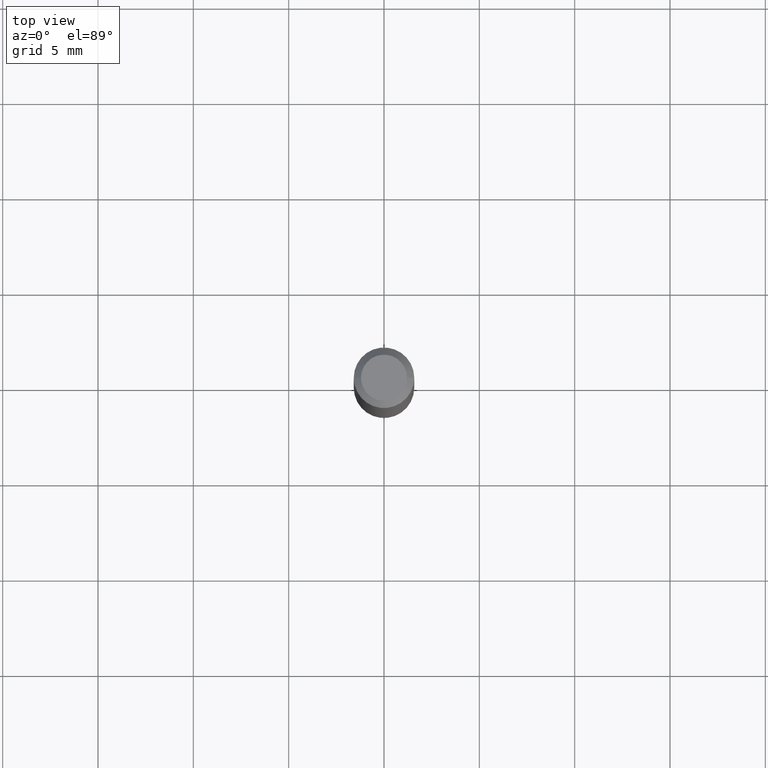
[diagram: clean part render]
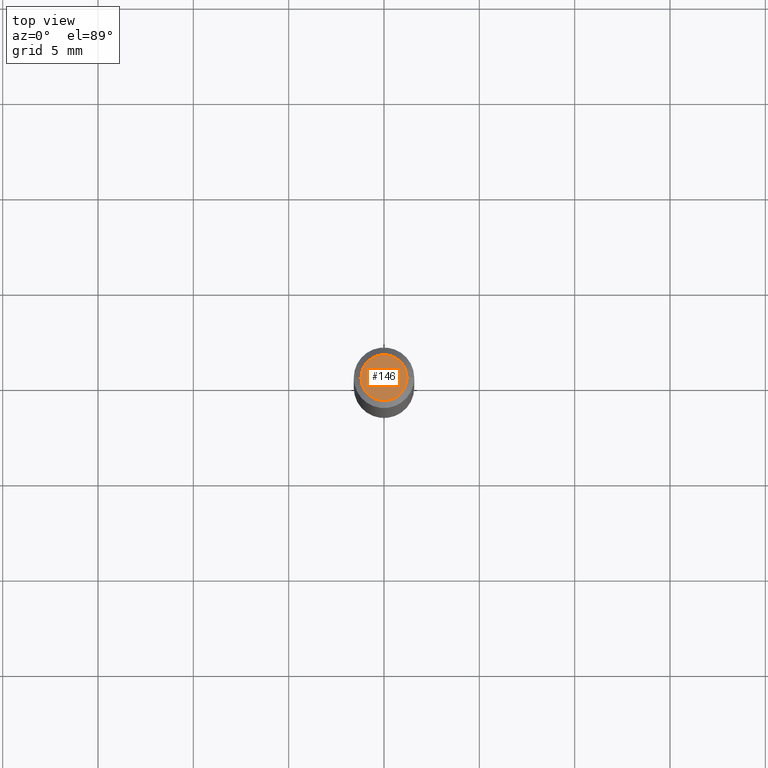
[diagram: same view with one face highlighted and labeled with its STEP entity id]
A machine part, top view. The second image highlights one B-rep face of the part: STEP entity #146.
In plain terms, the highlighted planar face has unit normal (0, -0, -1).
Its self-contained STEP definition (entity closure, byte-faithful):
#11 = EDGE_CURVE ( 'NONE', #366, #335, #135, .T. ) ;
#17 = DIRECTION ( 'NONE',  ( 2.438088387897960049E-29, -3.491481338843145188E-15, -1.000000000000000000 ) ) ;
#38 = DIRECTION ( 'NONE',  ( 1.000000000000000000, -6.982962677686267499E-15, 4.852736867747366768E-29 ) ) ;
#105 = CARTESIAN_POINT ( 'NONE',  ( 0.04749999999999999362, -4.035134999187574186E-16, 2.469815280770085059E-16 ) ) ;
#119 = DIRECTION ( 'NONE',  ( -1.000000000000000000, 6.982962677686265922E-15, -4.876176775795935793E-29 ) ) ;
#120 = DIRECTION ( 'NONE',  ( -2.445468806185136597E-29, 3.491481338843145583E-15, 1.000000000000000000 ) ) ;
#135 = CIRCLE ( 'NONE', #386, 0.04749999999999999362 ) ;
#141 = AXIS2_PLACEMENT_3D ( 'NONE', #268, #17, #119 ) ;
#146 = ADVANCED_FACE ( 'NONE', ( #232 ), #274, .F. ) ;
#150 = DIRECTION ( 'NONE',  ( -2.445468806185136597E-29, 3.491481338843145583E-15, 1.000000000000000000 ) ) ;
#190 = ORIENTED_EDGE ( 'NONE', *, *, #11, .T. ) ;
#197 = ORIENTED_EDGE ( 'NONE', *, *, #429, .T. ) ;
#232 = FACE_OUTER_BOUND ( 'NONE', #447, .T. ) ;
#263 = DIRECTION ( 'NONE',  ( 1.000000000000000000, -6.982962677686267499E-15, 4.852736867747366768E-29 ) ) ;
#268 = CARTESIAN_POINT ( 'NONE',  ( 3.316907271900976096E-16, 0.04749999999999999362, -4.235459955654642541E-17 ) ) ;
#274 = PLANE ( 'NONE',  #141 ) ;
#305 = CIRCLE ( 'NONE', #388, 0.04749999999999999362 ) ;
#335 = VERTEX_POINT ( 'NONE', #105 ) ;
#349 = CARTESIAN_POINT ( 'NONE',  ( -0.04749999999999999362, 3.578768372314215436E-16, 2.469815280770035755E-16 ) ) ;
#366 = VERTEX_POINT ( 'NONE', #349 ) ;
#386 = AXIS2_PLACEMENT_3D ( 'NONE', #432, #150, #38 ) ;
#388 = AXIS2_PLACEMENT_3D ( 'NONE', #440, #120, #263 ) ;
#429 = EDGE_CURVE ( 'NONE', #335, #366, #305, .T. ) ;
#432 = CARTESIAN_POINT ( 'NONE',  ( -6.039856226162565090E-45, 8.623313963198306787E-31, 2.469815280770059421E-16 ) ) ;
#440 = CARTESIAN_POINT ( 'NONE',  ( -6.039856226162565090E-45, 8.623313963198306787E-31, 2.469815280770059421E-16 ) ) ;
#447 = EDGE_LOOP ( 'NONE', ( #190, #197 ) ) ;